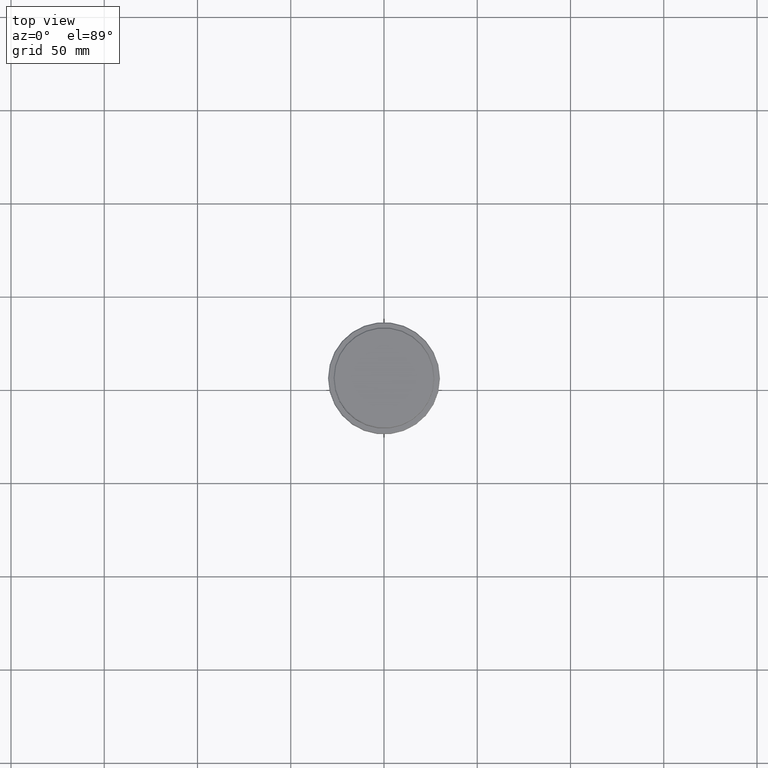
[diagram: clean part render]
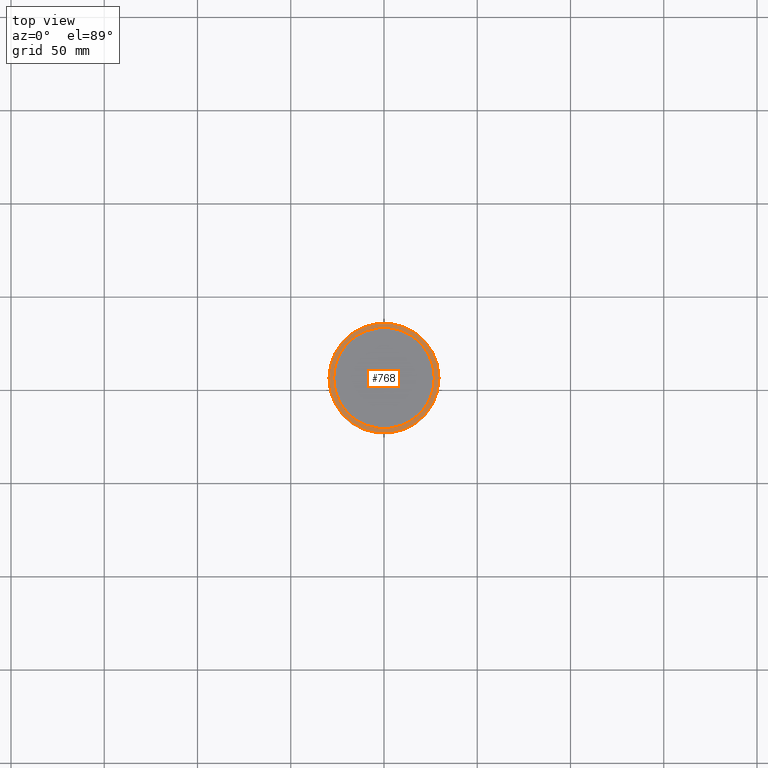
[diagram: same view with one face highlighted and labeled with its STEP entity id]
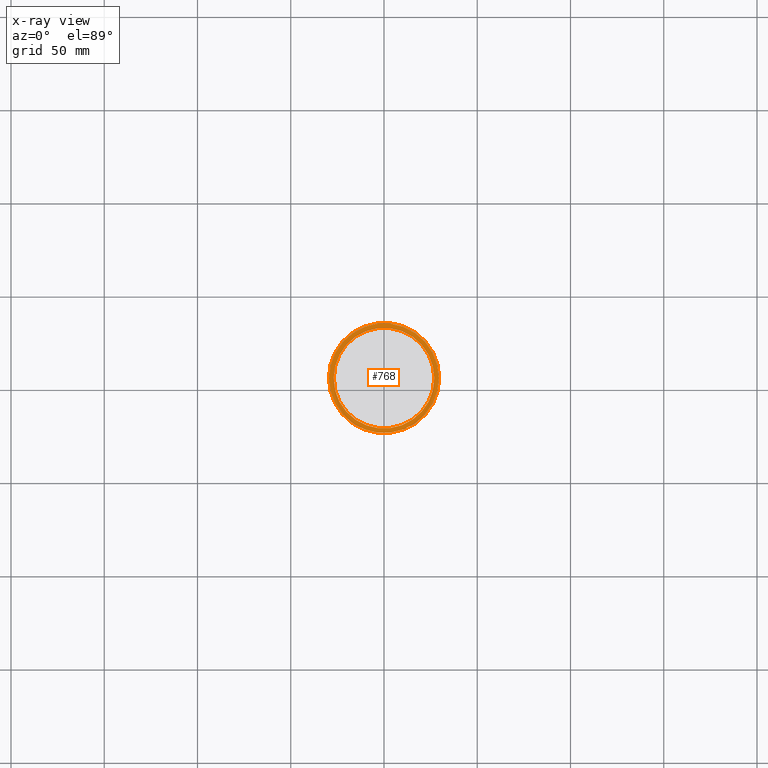
[diagram: x-ray of the same camera — body ghosted, the highlighted face saturated]
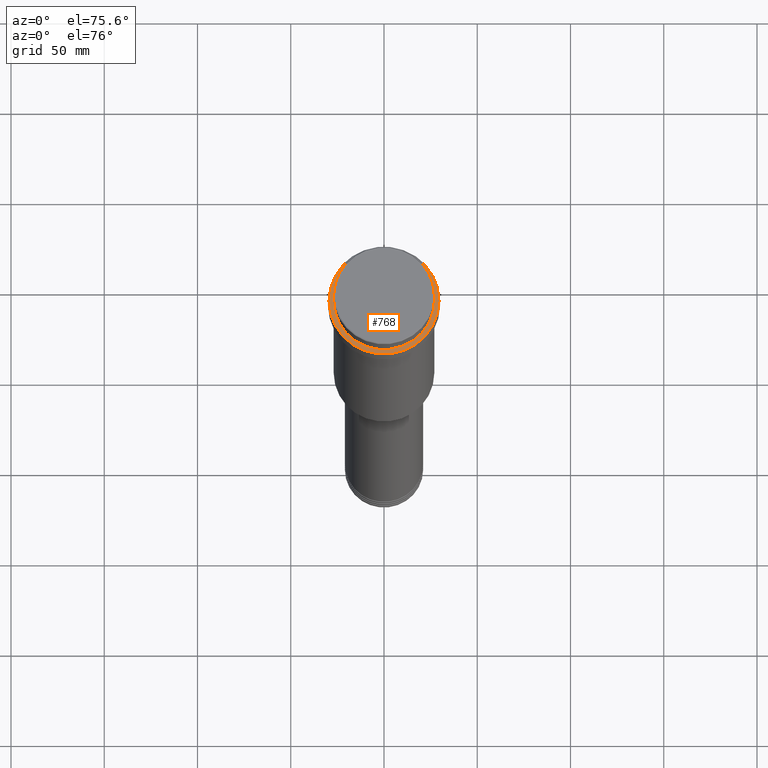
[diagram: same view with one face highlighted and labeled with its STEP entity id]
A machine part, top view. The second image highlights one B-rep face of the part: STEP entity #768.
The next image is the same camera in x-ray: the body ghosted, the highlighted face saturated — about 0% of this face is hidden behind the body in this view.
A second angle (auxiliary view) of the same face is appended — the face is thin or edge-on in the first view.
In plain terms, the highlighted planar face has unit normal (0, -0, 1).
Its self-contained STEP definition (entity closure, byte-faithful):
#9 = CIRCLE ( 'NONE', #384, 29.49999999999991473 ) ;
#42 = ORIENTED_EDGE ( 'NONE', *, *, #691, .T. ) ;
#60 = CIRCLE ( 'NONE', #341, 29.49999999999991473 ) ;
#86 = EDGE_LOOP ( 'NONE', ( #645, #1404 ) ) ;
#212 = CARTESIAN_POINT ( 'NONE',  ( 29.49999999999991473, 3.643324227463370658E-15, -12.00000000000000178 ) ) ;
#299 = DIRECTION ( 'NONE',  ( -0.000000000000000000, -0.000000000000000000, 1.000000000000000000 ) ) ;
#329 = CARTESIAN_POINT ( 'NONE',  ( 0.000000000000000000, 26.49999999999999645, -12.00000000000000178 ) ) ;
#334 = FACE_OUTER_BOUND ( 'NONE', #716, .T. ) ;
#341 = AXIS2_PLACEMENT_3D ( 'NONE', #1361, #606, #1163 ) ;
#360 = AXIS2_PLACEMENT_3D ( 'NONE', #554, #1094, #1401 ) ;
#371 = CARTESIAN_POINT ( 'NONE',  ( -26.99999999999999289, 3.306546357697852944E-15, -12.00000000000000178 ) ) ;
#384 = AXIS2_PLACEMENT_3D ( 'NONE', #396, #299, #1166 ) ;
#396 = CARTESIAN_POINT ( 'NONE',  ( 0.000000000000000000, 0.000000000000000000, -12.00000000000000178 ) ) ;
#414 = AXIS2_PLACEMENT_3D ( 'NONE', #1011, #480, #912 ) ;
#449 = EDGE_CURVE ( 'NONE', #1237, #939, #977, .T. ) ;
#480 = DIRECTION ( 'NONE',  ( 0.000000000000000000, 0.000000000000000000, -1.000000000000000000 ) ) ;
#536 = PLANE ( 'NONE',  #931 ) ;
#554 = CARTESIAN_POINT ( 'NONE',  ( 0.000000000000000000, 0.000000000000000000, -12.00000000000000178 ) ) ;
#606 = DIRECTION ( 'NONE',  ( -0.000000000000000000, -0.000000000000000000, 1.000000000000000000 ) ) ;
#645 = ORIENTED_EDGE ( 'NONE', *, *, #449, .T. ) ;
#648 = VERTEX_POINT ( 'NONE', #961 ) ;
#691 = EDGE_CURVE ( 'NONE', #648, #791, #9, .T. ) ;
#716 = EDGE_LOOP ( 'NONE', ( #42, #736 ) ) ;
#736 = ORIENTED_EDGE ( 'NONE', *, *, #1103, .T. ) ;
#768 = ADVANCED_FACE ( 'NONE', ( #334, #1073 ), #536, .T. ) ;
#791 = VERTEX_POINT ( 'NONE', #212 ) ;
#912 = DIRECTION ( 'NONE',  ( 1.000000000000000000, 0.000000000000000000, 0.000000000000000000 ) ) ;
#931 = AXIS2_PLACEMENT_3D ( 'NONE', #329, #1193, #973 ) ;
#939 = VERTEX_POINT ( 'NONE', #371 ) ;
#961 = CARTESIAN_POINT ( 'NONE',  ( -29.49999999999991473, 0.000000000000000000, -12.00000000000000178 ) ) ;
#973 = DIRECTION ( 'NONE',  ( 1.000000000000000000, 0.000000000000000000, 0.000000000000000000 ) ) ;
#977 = CIRCLE ( 'NONE', #360, 26.99999999999999289 ) ;
#990 = CARTESIAN_POINT ( 'NONE',  ( 26.99999999999999289, 0.000000000000000000, -12.00000000000000178 ) ) ;
#1011 = CARTESIAN_POINT ( 'NONE',  ( 0.000000000000000000, 0.000000000000000000, -12.00000000000000178 ) ) ;
#1024 = CIRCLE ( 'NONE', #414, 26.99999999999999289 ) ;
#1073 = FACE_BOUND ( 'NONE', #86, .T. ) ;
#1094 = DIRECTION ( 'NONE',  ( 0.000000000000000000, 0.000000000000000000, -1.000000000000000000 ) ) ;
#1103 = EDGE_CURVE ( 'NONE', #791, #648, #60, .T. ) ;
#1163 = DIRECTION ( 'NONE',  ( 1.000000000000000000, 0.000000000000000000, 0.000000000000000000 ) ) ;
#1166 = DIRECTION ( 'NONE',  ( 1.000000000000000000, 0.000000000000000000, 0.000000000000000000 ) ) ;
#1193 = DIRECTION ( 'NONE',  ( 0.000000000000000000, -0.000000000000000000, 1.000000000000000000 ) ) ;
#1237 = VERTEX_POINT ( 'NONE', #990 ) ;
#1361 = CARTESIAN_POINT ( 'NONE',  ( 0.000000000000000000, 0.000000000000000000, -12.00000000000000178 ) ) ;
#1363 = EDGE_CURVE ( 'NONE', #939, #1237, #1024, .T. ) ;
#1401 = DIRECTION ( 'NONE',  ( 1.000000000000000000, 0.000000000000000000, 0.000000000000000000 ) ) ;
#1404 = ORIENTED_EDGE ( 'NONE', *, *, #1363, .T. ) ;